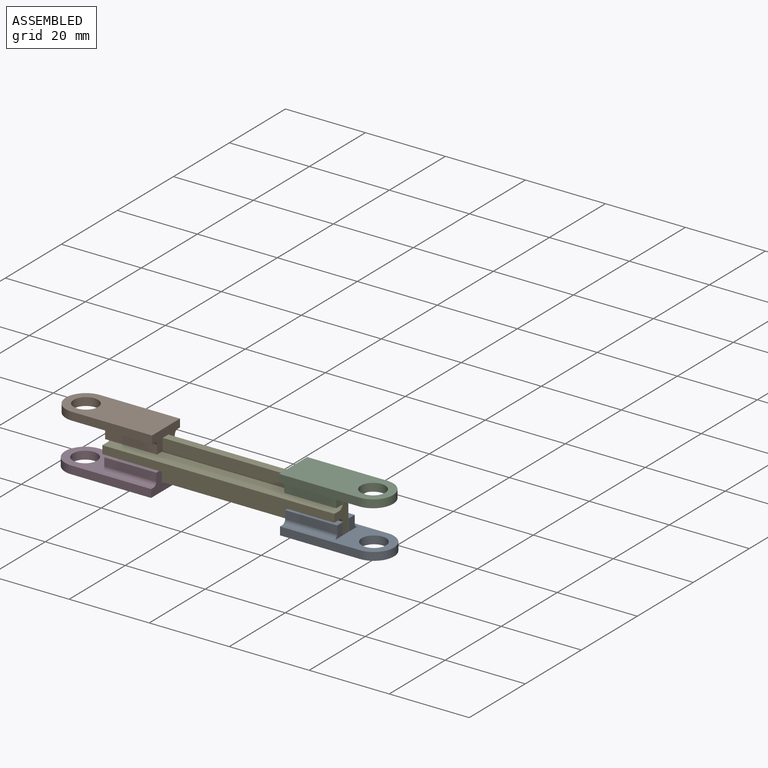
[diagram: assembled view]
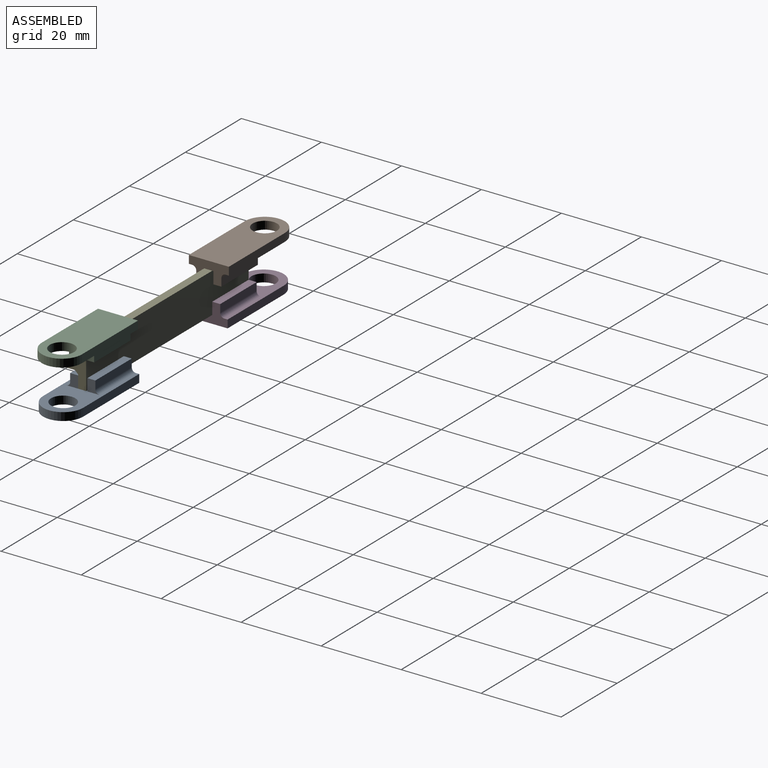
[diagram: assembled view, second angle]
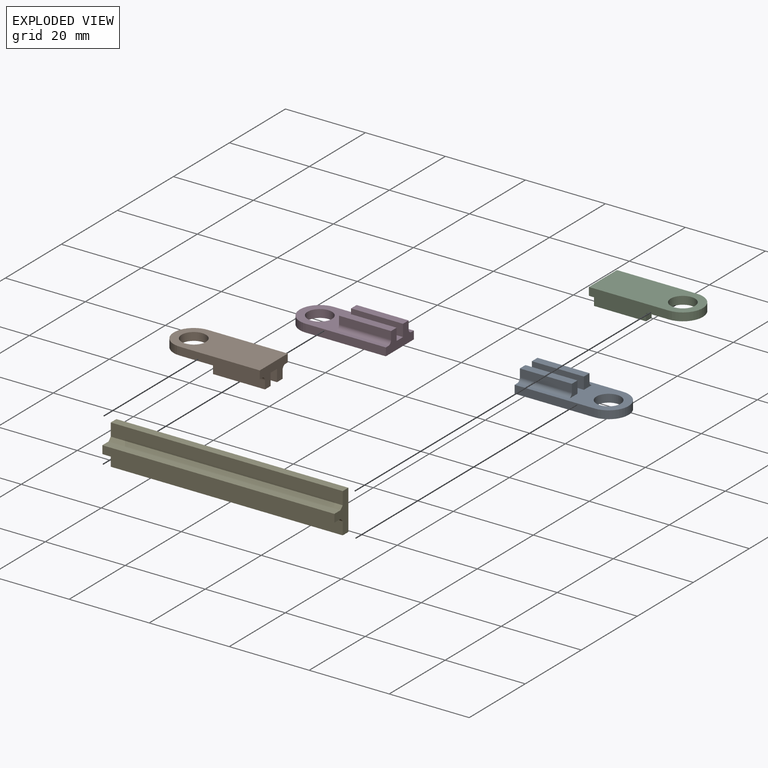
[diagram: exploded view]
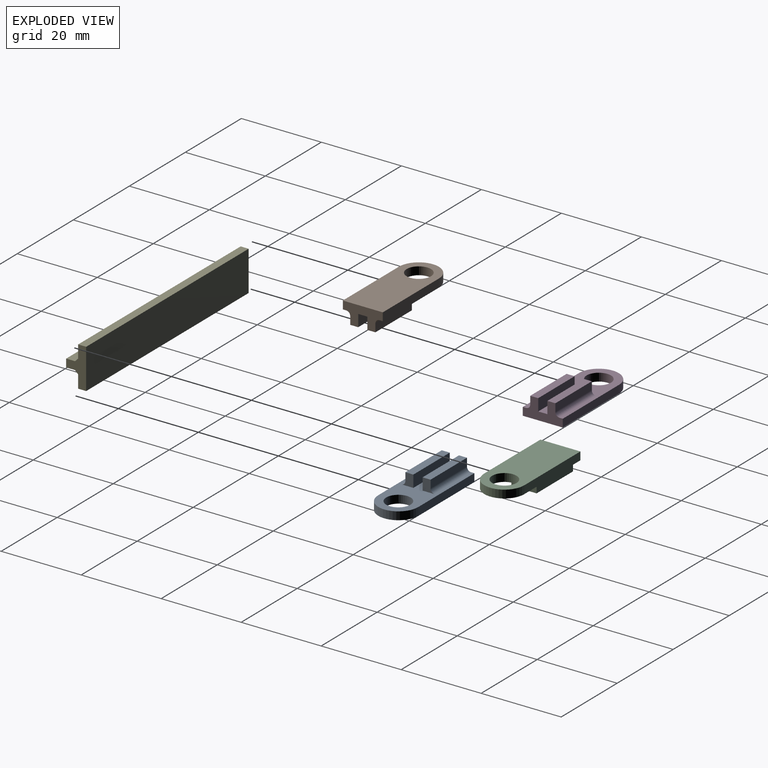
[diagram: exploded view, second angle]
ASSEMBLY  parts=5 mates=4
PART A: 17 faces, bbox 25x10x5 mm
  f0: plane 25x10mm, normal (0,0,1), area 132mm2, adj f1,f2,f3,f4,f5,f7,f9,f12
  f1: plane 20x2mm, normal (0,-1,0), area 40mm2, adj f0,f2,f5,f6
  f2: plane 10x5mm, normal (1,0,0), area 32.4mm2, adj f0,f1,f3,f6,f7,f8,f10,f11
  f3: plane 20x2mm, normal (0,1,0), area 40mm2, adj f0,f2,f5,f6
  f4: cylinder r=3.05mm len=6.1mm, axis (0,0,-1), area 38.3mm2, adj f0,f6
  f5: cylinder r=5mm len=10mm, axis (0,0,-1), area 31.4mm2, adj f0,f1,f3,f6
  f6: plane 25x10mm, normal (0,0,-1), area 210mm2, adj f1,f2,f3,f4,f5
  f7: plane 13x3mm, normal (0,-1,0), area 39mm2, adj f0,f2,f9,f10
  f8: plane 13x2mm, normal (0,1,0), area 26mm2, adj f2,f9,f10,f16
  f9: plane 3x3mm, normal (-1,0,0), area 6.2mm2, adj f0,f7,f8,f10,f16
  f10: plane 13x2mm, normal (0,0,1), area 26mm2, adj f2,f7,f8,f9
  f11: plane 13x2mm, normal (0,-1,0), area 26mm2, adj f2,f13,f14,f15
  f12: plane 13x3mm, normal (0,1,0), area 39mm2, adj f0,f2,f13,f14
  f13: plane 3x3mm, normal (-1,0,0), area 6.2mm2, adj f0,f11,f12,f14,f15
  f14: plane 13x2mm, normal (0,0,1), area 26mm2, adj f2,f11,f12,f13
  f15: cylinder r=1mm len=13mm, axis (1,0,0), area 20.4mm2, adj f0,f2,f11,f13
  f16: cylinder r=1mm len=13mm, axis (-1,0,0), area 20.4mm2, adj f0,f2,f8,f9
PART B: same geometry as A
PART C: same geometry as A
PART D: same geometry as A
PART E: 12 faces, bbox 58x5x10 mm
  f0: plane 58x3.2mm, normal (0,-1,0), area 185.6mm2, adj f1,f2,f3,f11
  f1: plane 10x5mm, normal (-1,0,0), area 26.6mm2, adj f0,f2,f4,f5,f6,f7,f8,f9
  f2: plane 58x2mm, normal (0,0,-1), area 116mm2, adj f0,f1,f3,f6
  f3: plane 10x5mm, normal (1,0,0), area 26.6mm2, adj f0,f2,f4,f5,f6,f7,f8,f9
  f4: plane 58x2mm, normal (0,0,1), area 116mm2, adj f1,f3,f5,f6
  f5: plane 58x3.2mm, normal (0,-1,0), area 185.6mm2, adj f1,f3,f4,f10
  f6: plane 58x10mm, normal (0,1,0), area 580mm2, adj f1,f2,f3,f4
  f7: plane 58x2.2mm, normal (0,0,-1), area 127.6mm2, adj f1,f3,f9,f11
  f8: plane 58x2.2mm, normal (0,0,1), area 127.6mm2, adj f1,f3,f9,f10
  f9: plane 58x2mm, normal (0,-1,0), area 116mm2, adj f1,f3,f7,f8
  f10: plane 58x0.8mm, normal (0,-0.71,0.71), area 65.6mm2, adj f1,f3,f5,f8
  f11: plane 58x0.8mm, normal (0,-0.71,-0.71), area 65.6mm2, adj f0,f1,f3,f7
PLACE A rot(axis=(0,0,1),180deg) t=(39.15,32.9,5.64)mm
PLACE B rot(axis=(1,0,0),180deg) t=(-32.85,32.9,19.64)mm
PLACE C rot(axis=(0,-1,0),180deg) t=(39.15,32.6,19.64)mm
PLACE D t=(-32.85,32.6,5.64)mm
PLACE E t=(-36.68,33.75,1.41)mm
MATE fastened C.f7 <-> E.f6  axis (0,-1,0) through (32.15,33.75,17.64)mm
MATE fastened B.f7 <-> E.f5  axis (0,1,0) through (-25.85,31.75,17.64)mm
MATE fastened A.f7 <-> E.f0  axis (0,1,0) through (32.15,31.75,7.64)mm
MATE fastened D.f7 <-> E.f6  axis (0,-1,0) through (-25.85,33.75,7.64)mm
